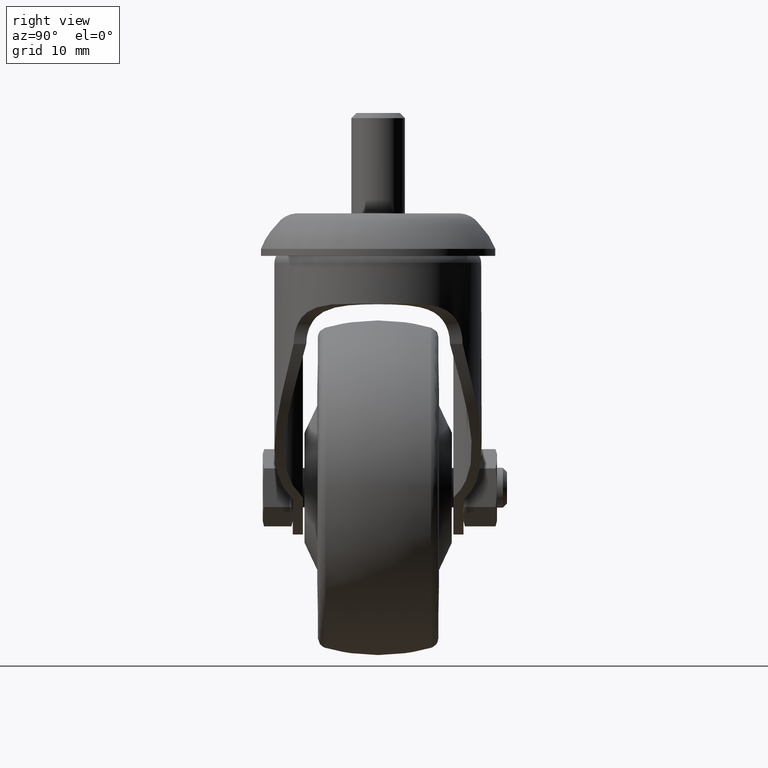
[diagram: clean part render]
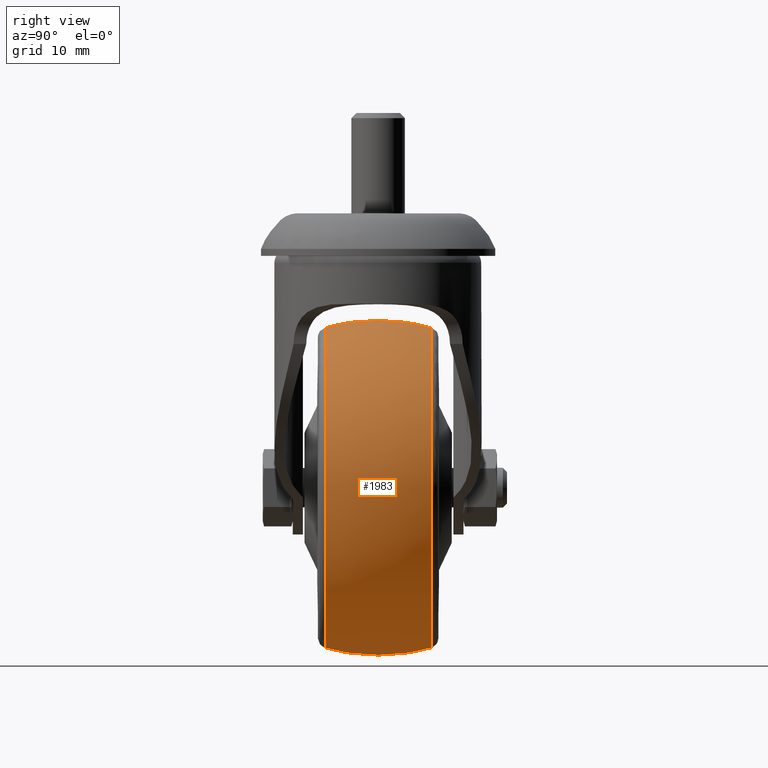
[diagram: same view with one face highlighted and labeled with its STEP entity id]
A machine part, right view. The second image highlights one B-rep face of the part: STEP entity #1983.
In plain terms, the highlighted face is a freeform B-spline surface patch.
Its self-contained STEP definition (entity closure, byte-faithful):
#40=(
BOUNDED_SURFACE()
B_SPLINE_SURFACE(2,2,((#3948,#3949,#3950,#3951,#3952,#3953,#3954,#3955,
#3956),(#3957,#3958,#3959,#3960,#3961,#3962,#3963,#3964,#3965),(#3966,#3967,
#3968,#3969,#3970,#3971,#3972,#3973,#3974)),.UNSPECIFIED.,.F.,.T.,.F.)
B_SPLINE_SURFACE_WITH_KNOTS((3,3),(3,2,2,2,3),(-0.266294017118183,0.26629401340118),
(-3.14159265358979,-1.5707963267949,0.,1.5707963267949,3.14159265358979),
 .UNSPECIFIED.)
GEOMETRIC_REPRESENTATION_ITEM()
RATIONAL_B_SPLINE_SURFACE(((1.,0.707106781186548,1.,0.707106781186548,1.,
0.707106781186548,1.,0.707106781186548,1.),(0.964752778374519,0.682183231757185,
0.964752778374519,0.682183231757185,0.964752778374519,0.682183231757185,
0.964752778374519,0.682183231757185,0.964752778374519),(1.,0.707106781186548,
1.,0.707106781186548,1.,0.707106781186548,1.,0.707106781186548,1.)))
REPRESENTATION_ITEM('')
SURFACE()
);
#485=FACE_OUTER_BOUND('',#641,.T.);
#641=EDGE_LOOP('',(#1788,#1789,#1790,#1791));
#777=CIRCLE('',#2449,23.942583365908);
#778=CIRCLE('',#2450,30.);
#779=CIRCLE('',#2451,23.9425833365632);
#995=VERTEX_POINT('',#3945);
#996=VERTEX_POINT('',#3975);
#1260=EDGE_CURVE('',#995,#995,#777,.T.);
#1261=EDGE_CURVE('',#995,#996,#778,.T.);
#1262=EDGE_CURVE('',#996,#996,#779,.T.);
#1788=ORIENTED_EDGE('',*,*,#1260,.F.);
#1789=ORIENTED_EDGE('',*,*,#1261,.T.);
#1790=ORIENTED_EDGE('',*,*,#1262,.T.);
#1791=ORIENTED_EDGE('',*,*,#1261,.F.);
#1983=ADVANCED_FACE('',(#485),#40,.F.);
#2449=AXIS2_PLACEMENT_3D('',#3947,#3061,#3062);
#2450=AXIS2_PLACEMENT_3D('',#3976,#3063,#3064);
#2451=AXIS2_PLACEMENT_3D('',#3977,#3065,#3066);
#3061=DIRECTION('center_axis',(1.,0.,0.));
#3062=DIRECTION('ref_axis',(0.,0.,-1.));
#3063=DIRECTION('center_axis',(0.,-1.,-1.22464679914735E-16));
#3064=DIRECTION('ref_axis',(0.,-1.22464679914735E-16,1.));
#3065=DIRECTION('center_axis',(1.,0.,0.));
#3066=DIRECTION('ref_axis',(0.,0.,-1.));
#3945=CARTESIAN_POINT('',(18.3947367345256,-2.93212080823779E-15,23.942583365908));
#3947=CARTESIAN_POINT('Origin',(18.3947367345256,0.,0.));
#3948=CARTESIAN_POINT('Ctrl Pts',(2.60526315789472,0.,23.9425833365632));
#3949=CARTESIAN_POINT('Ctrl Pts',(2.60526315789472,-23.9425833365632,23.9425833365632));
#3950=CARTESIAN_POINT('Ctrl Pts',(2.60526315789472,-23.9425833365632,0.));
#3951=CARTESIAN_POINT('Ctrl Pts',(2.60526315789472,-23.9425833365632,-23.9425833365632));
#3952=CARTESIAN_POINT('Ctrl Pts',(2.60526315789472,0.,-23.9425833365632));
#3953=CARTESIAN_POINT('Ctrl Pts',(2.60526315789472,23.9425833365632,-23.9425833365632));
#3954=CARTESIAN_POINT('Ctrl Pts',(2.60526315789472,23.9425833365632,0.));
#3955=CARTESIAN_POINT('Ctrl Pts',(2.60526315789472,23.9425833365632,23.9425833365632));
#3956=CARTESIAN_POINT('Ctrl Pts',(2.60526315789472,0.,23.9425833365632));
#3957=CARTESIAN_POINT('Ctrl Pts',(10.4999999422079,0.,26.0960493428649));
#3958=CARTESIAN_POINT('Ctrl Pts',(10.4999999422079,-26.0960493428649,26.0960493428649));
#3959=CARTESIAN_POINT('Ctrl Pts',(10.4999999422079,-26.0960493428649,0.));
#3960=CARTESIAN_POINT('Ctrl Pts',(10.4999999422079,-26.0960493428649,-26.0960493428649));
#3961=CARTESIAN_POINT('Ctrl Pts',(10.4999999422079,0.,-26.0960493428649));
#3962=CARTESIAN_POINT('Ctrl Pts',(10.4999999422079,26.0960493428649,-26.0960493428649));
#3963=CARTESIAN_POINT('Ctrl Pts',(10.4999999422079,26.0960493428649,0.));
#3964=CARTESIAN_POINT('Ctrl Pts',(10.4999999422079,26.0960493428649,26.0960493428649));
#3965=CARTESIAN_POINT('Ctrl Pts',(10.4999999422079,0.,26.0960493428649));
#3966=CARTESIAN_POINT('Ctrl Pts',(18.3947367345256,0.,23.942583365908));
#3967=CARTESIAN_POINT('Ctrl Pts',(18.3947367345256,-23.942583365908,23.942583365908));
#3968=CARTESIAN_POINT('Ctrl Pts',(18.3947367345256,-23.942583365908,0.));
#3969=CARTESIAN_POINT('Ctrl Pts',(18.3947367345256,-23.942583365908,-23.942583365908));
#3970=CARTESIAN_POINT('Ctrl Pts',(18.3947367345256,0.,-23.942583365908));
#3971=CARTESIAN_POINT('Ctrl Pts',(18.3947367345256,23.942583365908,-23.942583365908));
#3972=CARTESIAN_POINT('Ctrl Pts',(18.3947367345256,23.942583365908,0.));
#3973=CARTESIAN_POINT('Ctrl Pts',(18.3947367345256,23.942583365908,23.942583365908));
#3974=CARTESIAN_POINT('Ctrl Pts',(18.3947367345256,0.,23.942583365908));
#3975=CARTESIAN_POINT('',(2.60526315789473,-2.93212080464409E-15,23.9425833365632));
#3976=CARTESIAN_POINT('Origin',(10.5,6.12323399573672E-16,-4.99999999999996));
#3977=CARTESIAN_POINT('Origin',(2.60526315789473,0.,0.));